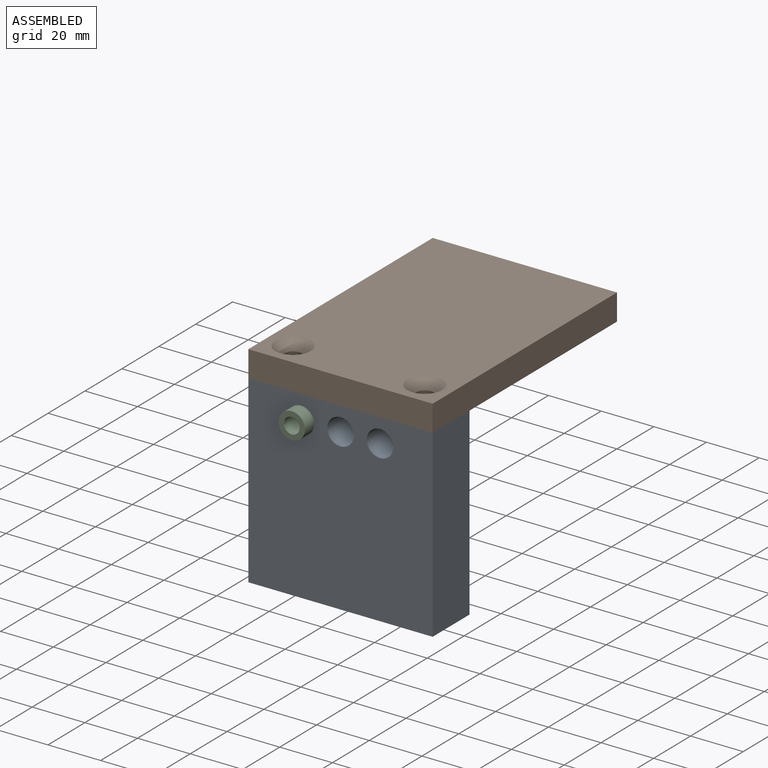
[diagram: assembled view]
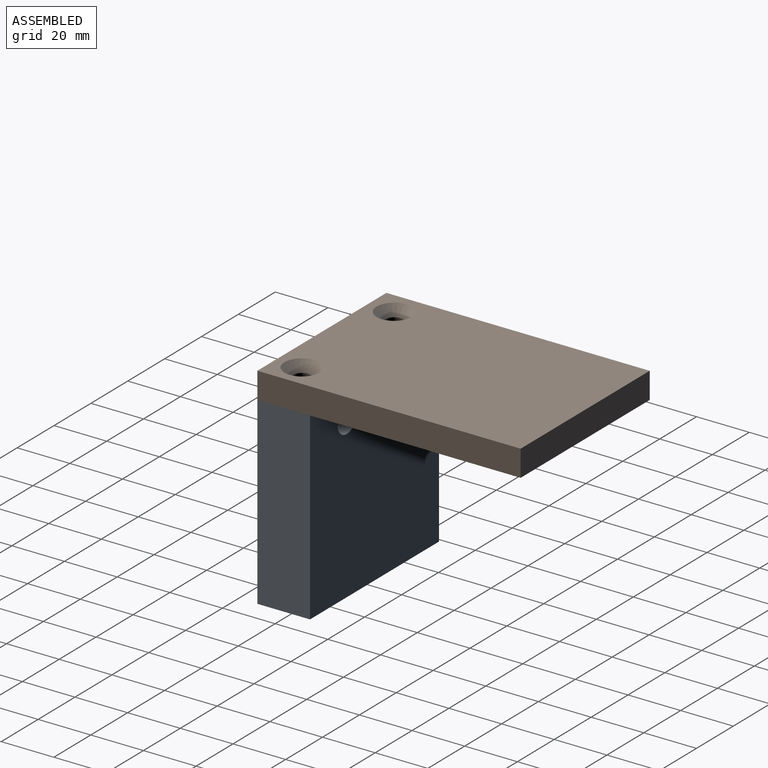
[diagram: assembled view, second angle]
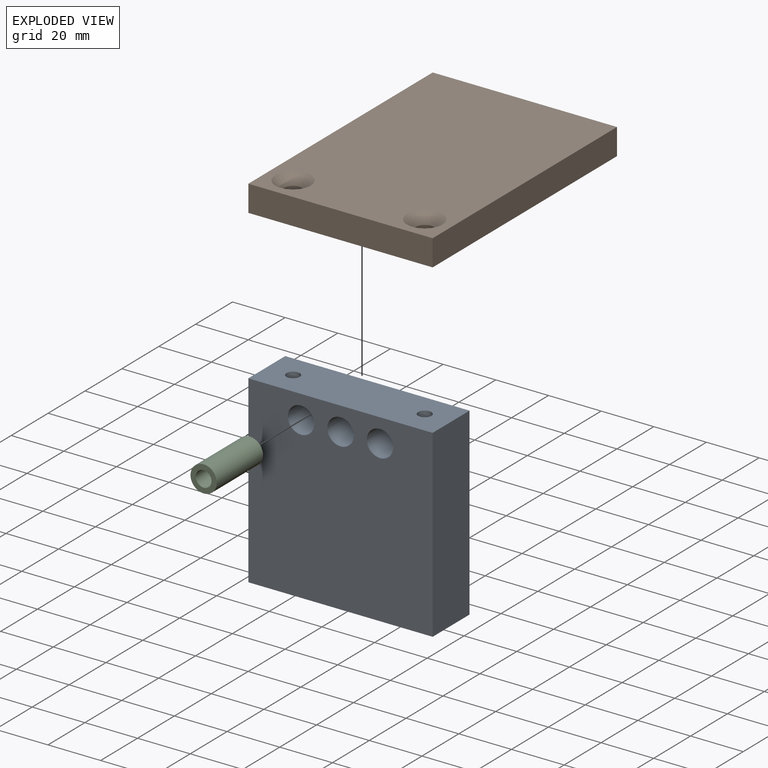
[diagram: exploded view]
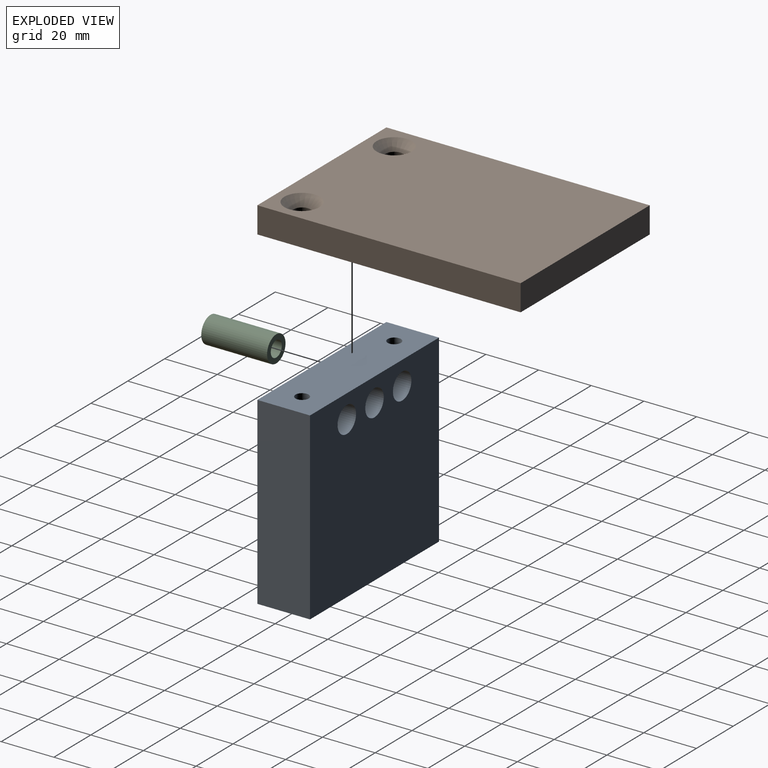
[diagram: exploded view, second angle]
ASSEMBLY  parts=3 mates=2
PART A: 13 faces, bbox 70x20x70 mm
  f0: plane 70x20mm, normal (-1,0,0), area 1400mm2, adj f1,f3,f4,f5
  f1: plane 70x20mm, normal (0,0,-1), area 1400mm2, adj f0,f2,f4,f5
  f2: plane 70x20mm, normal (1,0,0), area 1400mm2, adj f1,f3,f4,f5
  f3: plane 70x20mm, normal (0,0,1), area 1360.7mm2, adj f0,f2,f4,f5,f7,f12
  f4: plane 70x70mm, normal (0,1,0), area 4664.4mm2, adj f0,f1,f2,f3,f6,f9,f10
  f5: plane 70x70mm, normal (0,-1,0), area 4664.4mm2, adj f0,f1,f2,f3,f6,f9,f10
  f6: cylinder r=5mm len=20mm, axis (0,-1,0), area 628.3mm2, adj f4,f5
  f7: cylinder r=2.5mm len=10mm, axis (0,0,1), area 157.1mm2, adj f3,f8
  f8: cone r=0mm half-angle=59deg, axis (0,0,1), area 22.9mm2, adj f7
  f9: cylinder r=5mm len=20mm, axis (0,-1,0), area 628.3mm2, adj f4,f5
  f10: cylinder r=5mm len=20mm, axis (0,-1,0), area 628.3mm2, adj f4,f5
  f11: cone r=0mm half-angle=59deg, axis (0,0,1), area 22.9mm2, adj f12
  f12: cylinder r=2.5mm len=10mm, axis (0,0,1), area 157.1mm2, adj f3,f11
PART B: 10 faces, bbox 70x100x10 mm
  f0: plane 70x10mm, normal (0,1,0), area 700mm2, adj f1,f3,f4,f5
  f1: plane 100x10mm, normal (-1,0,0), area 1000mm2, adj f0,f2,f4,f5
  f2: plane 70x10mm, normal (0,-1,0), area 700mm2, adj f1,f3,f4,f5
  f3: plane 100x10mm, normal (1,0,0), area 1000mm2, adj f0,f2,f4,f5
  f4: plane 100x70mm, normal (0,0,1), area 6716.3mm2, adj f0,f1,f2,f3,f7,f9
  f5: plane 100x70mm, normal (0,0,-1), area 6931.6mm2, adj f0,f1,f2,f3,f6,f8
  f6: cylinder r=3.3mm len=6.6mm, axis (0,0,1), area 136.4mm2, adj f5,f7
  f7: cone r=3.3mm half-angle=45deg, axis (0,0,1), area 152.3mm2, adj f4,f6
  f8: cylinder r=3.3mm len=6.6mm, axis (0,0,1), area 136.4mm2, adj f5,f9
  f9: cone r=3.3mm half-angle=45deg, axis (0,0,1), area 152.3mm2, adj f4,f8
PART C: 4 faces, bbox 10x10x25 mm
  f0: cylinder r=3mm len=25mm, axis (0,0,-1), area 471.2mm2, adj f2,f3
  f1: cylinder r=5mm len=25mm, axis (0,0,-1), area 785.4mm2, adj f2,f3
  f2: plane 10x10mm, normal (0,0,1), area 50.3mm2, adj f0,f1
  f3: plane 10x10mm, normal (0,0,-1), area 50.3mm2, adj f0,f1
PLACE A t=(0.16,-10.14,24.65)mm
PLACE B t=(0.16,-0.14,24.65)mm
PLACE C rot(axis=(1,0,0),90deg) t=(-14.84,9.86,15.65)mm
MATE fastened C.f0 <-> A.f6  axis (0,1,0) through (-14.84,9.86,15.65)mm
MATE fastened B.f6 <-> A.f7  axis (0,0,-1) through (-24.84,-0.14,24.65)mm
